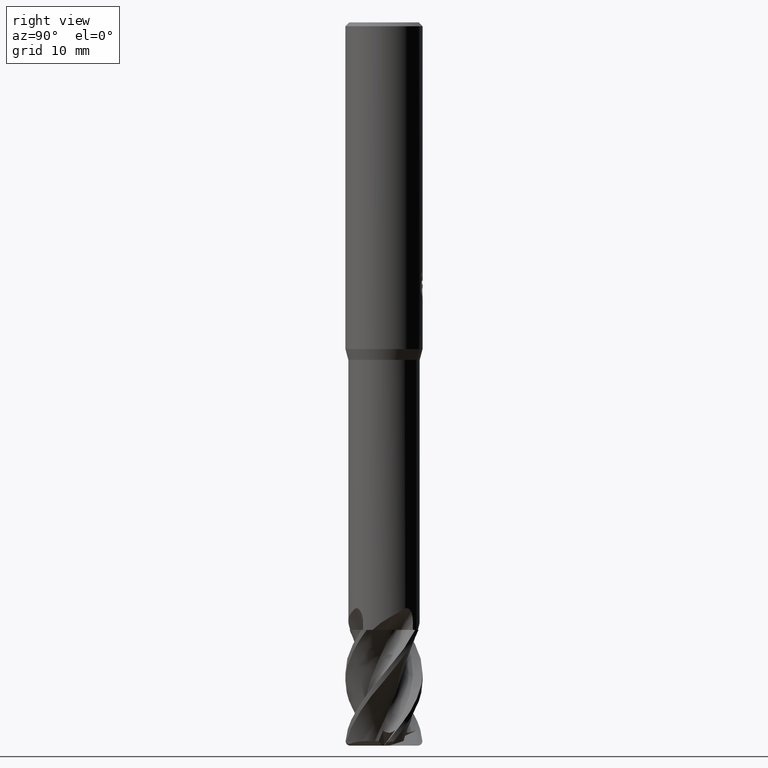
[diagram: clean part render]
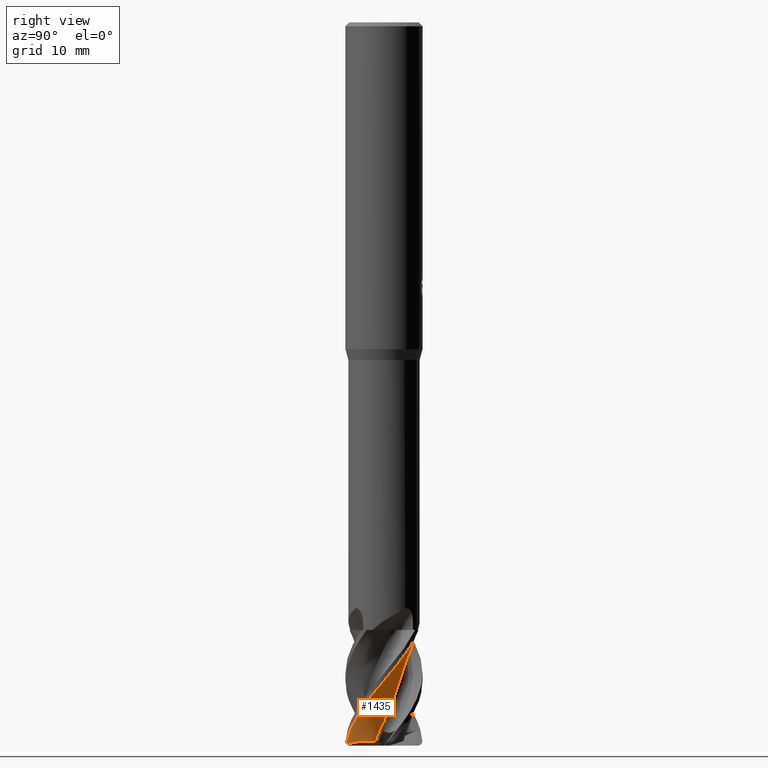
[diagram: same view with one face highlighted and labeled with its STEP entity id]
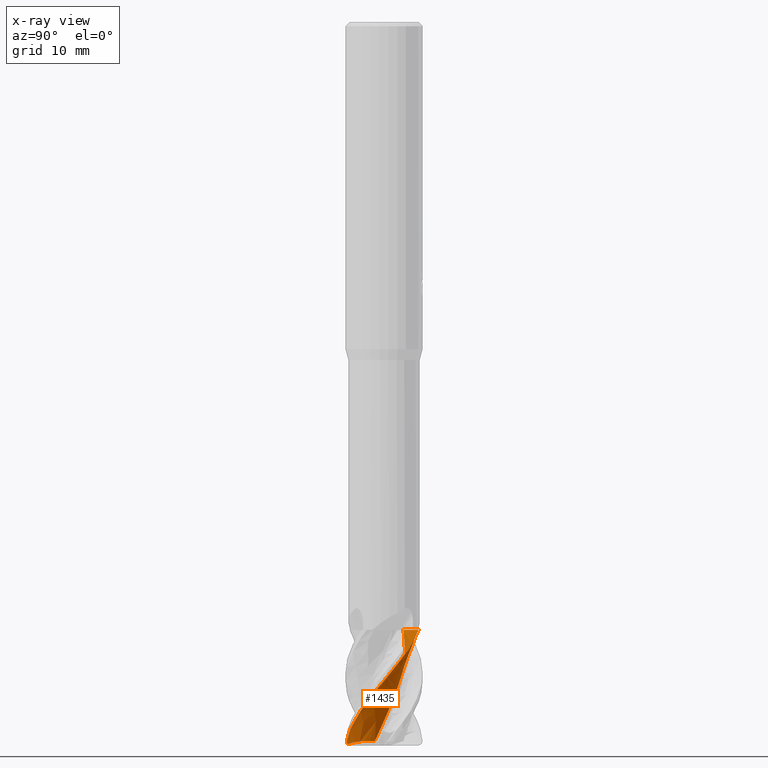
[diagram: x-ray of the same camera — body ghosted, the highlighted face saturated]
A machine part, right view. The second image highlights one B-rep face of the part: STEP entity #1435.
The next image is the same camera in x-ray: the body ghosted, the highlighted face saturated — about 0% of this face is hidden behind the body in this view.
In plain terms, the highlighted face is a freeform B-spline surface patch.
Its self-contained STEP definition (entity closure, byte-faithful):
#693=EDGE_CURVE('',#1035,#913,#1696,.T.);
#761=EDGE_CURVE('',#1019,#1021,#1770,.T.);
#769=EDGE_CURVE('',#1021,#1265,#1778,.T.);
#833=EDGE_CURVE('',#1265,#1033,#1844,.T.);
#913=VERTEX_POINT('',#1933);
#1019=VERTEX_POINT('',#2050);
#1021=VERTEX_POINT('',#2052);
#1033=VERTEX_POINT('',#2065);
#1035=VERTEX_POINT('',#2067);
#1063=EDGE_CURVE('',#1033,#913,#2098,.T.);
#1147=EDGE_CURVE('',#1035,#1019,#2189,.T.);
#1265=VERTEX_POINT('',#2317);
#1435=ADVANCED_FACE('',(#2507),#2508,.T.);
#1696=B_SPLINE_CURVE_WITH_KNOTS('',3,(#4288,#4289,#4290,#4291,#4292,#4293,#4294,#4295,#4296,#4297,#4298,#4299,#4300,#4301,#4302,#4303,#4304,#4305,#4306,#4307,#4308,#4309,#4310,#4311,#4312,#4313,#4314,#4315,#4316,#4317,#4318,#4319,#4320,#4321,#4322,#4323,#4324,#4325,#4326,#4327),.UNSPECIFIED.,.F.,.F.,(4,1,2,2,1,2,1,1,2,1,1,2,1,1,1,2,1,1,2,1,1,2,1,1,1,2,1,1,4),(0.0,0.439032880743634,0.878065761487268,1.75613152297454,2.63419728446181,3.51226304594907,4.39032880743634,5.70742744966724,7.02452609189815,8.34162473412905,9.65872337635995,10.5367891378472,11.4148548993345,12.2929206608218,13.170986422309,14.0490521837963,14.9271179452836,16.2442165875145,17.5613152297454,18.8784138719763,20.1955125142072,21.0735782756944,21.9516440371817,22.829709798669,23.7077755601562,24.5858413216435,25.4639070831308,26.7810057253617,28.0981043675926),.UNSPECIFIED.);
#1770=B_SPLINE_CURVE_WITH_KNOTS('',3,(#4737,#4738,#4739,#4740,#4741,#4742,#4743,#4744,#4745,#4746,#4747,#4748,#4749,#4750,#4751,#4752,#4753,#4754,#4755,#4756),.UNSPECIFIED.,.F.,.F.,(4,2,2,2,2,2,2,2,2,4),(0.0,0.552379909871849,1.06509052212092,1.39206714547594,1.59261688969133,1.72125507088427,1.86937894001586,1.99092780604971,2.05068872444246,2.10153383074118),.UNSPECIFIED.);
#1778=B_SPLINE_CURVE_WITH_KNOTS('',3,(#4779,#4780,#4781,#4782,#4783,#4784,#4785,#4786,#4787,#4788,#4789,#4790,#4791,#4792,#4793,#4794,#4795,#4796,#4797,#4798,#4799,#4800,#4801,#4802),.UNSPECIFIED.,.F.,.F.,(4,2,2,2,2,2,2,2,2,2,2,4),(0.0,1.93728681946989,2.38966177567358,3.2172363994353,3.84118026542504,4.151431104592,4.42447861877657,4.59394454958343,4.72281081769223,4.83222102079734,4.9199867294356,5.00744576006173),.UNSPECIFIED.);
#1844=B_SPLINE_CURVE_WITH_KNOTS('',3,(#5046,#5047,#5048,#5049,#5050,#5051,#5052,#5053),.UNSPECIFIED.,.F.,.F.,(4,2,2,4),(0.0,1.24316628872534,2.39651484077598,3.54982946853822),.UNSPECIFIED.);
#1933=CARTESIAN_POINT('',(-0.841296239243843,2.02177351185507,-63.0));
#2050=CARTESIAN_POINT('',(0.996993932438072,-3.72293093051326,-74.8529896927436));
#2052=CARTESIAN_POINT('',(1.0573862072393,-3.85771103230142,-74.5));
#2065=CARTESIAN_POINT('',(-0.362782698585987,2.63743713481837,-63.0));
#2067=CARTESIAN_POINT('',(1.97351294023017,-0.952778940918722,-74.5356994333427));
#2098=B_SPLINE_CURVE_WITH_KNOTS('',3,(#6309,#6310,#6311,#6312,#6313,#6314,#6315,#6316),.UNSPECIFIED.,.F.,.F.,(4,2,2,4),(0.0,1.24316628872534,2.39651484077598,3.54982946853822),.UNSPECIFIED.);
#2189=B_SPLINE_CURVE_WITH_KNOTS('',3,(#6806,#6807,#6808,#6809,#6810,#6811,#6812,#6813),.UNSPECIFIED.,.F.,.F.,(4,2,2,4),(0.0,1.08865642506067,2.10408348581509,3.23014612928414),.UNSPECIFIED.);
#2317=CARTESIAN_POINT('',(1.79929514636751,3.57235734302409,-63.0));
#2507=FACE_OUTER_BOUND('',#9105,.T.);
#2508=B_SPLINE_SURFACE_WITH_KNOTS('',3,3,((#9106,#9107,#9108,#9109,#9110,#9111,#9112,#9113,#9114,#9115,#9116,#9117,#9118,#9119,#9120,#9121,#9122,#9123,#9124,#9125,#9126,#9127,#9128,#9129,#9130,#9131,#9132,#9133,#9134,#9135,#9136,#9137,#9138,#9139,#9140,#9141,#9142,#9143,#9144,#9145),(#9146,#9147,#9148,#9149,#9150,#9151,#9152,#9153,#9154,#9155,#9156,#9157,#9158,#9159,#9160,#9161,#9162,#9163,#9164,#9165,#9166,#9167,#9168,#9169,#9170,#9171,#9172,#9173,#9174,#9175,#9176,#9177,#9178,#9179,#9180,#9181,#9182,#9183,#9184,#9185),(#9186,#9187,#9188,#9189,#9190,#9191,#9192,#9193,#9194,#9195,#9196,#9197,#9198,#9199,#9200,#9201,#9202,#9203,#9204,#9205,#9206,#9207,#9208,#9209,#9210,#9211,#9212,#9213,#9214,#9215,#9216,#9217,#9218,#9219,#9220,#9221,#9222,#9223,#9224,#9225),(#9226,#9227,#9228,#9229,#9230,#9231,#9232,#9233,#9234,#9235,#9236,#9237,#9238,#9239,#9240,#9241,#9242,#9243,#9244,#9245,#9246,#9247,#9248,#9249,#9250,#9251,#9252,#9253,#9254,#9255,#9256,#9257,#9258,#9259,#9260,#9261,#9262,#9263,#9264,#9265),(#9266,#9267,#9268,#9269,#9270,#9271,#9272,#9273,#9274,#9275,#9276,#9277,#9278,#9279,#9280,#9281,#9282,#9283,#9284,#9285,#9286,#9287,#9288,#9289,#9290,#9291,#9292,#9293,#9294,#9295,#9296,#9297,#9298,#9299,#9300,#9301,#9302,#9303,#9304,#9305),(#9306,#9307,#9308,#9309,#9310,#9311,#9312,#9313,#9314,#9315,#9316,#9317,#9318,#9319,#9320,#9321,#9322,#9323,#9324,#9325,#9326,#9327,#9328,#9329,#9330,#9331,#9332,#9333,#9334,#9335,#9336,#9337,#9338,#9339,#9340,#9341,#9342,#9343,#9344,#9345)),.UNSPECIFIED.,.F.,.F.,.F.,(4,1,1,4),(4,1,2,2,1,2,1,1,2,1,1,2,1,1,1,2,1,1,2,1,1,2,1,1,1,2,1,1,4),(-1.11221997675071,-0.695137485469193,-0.278054994187677,0.0),(0.0,0.439032880743634,0.878065761487268,1.75613152297454,2.63419728446181,3.51226304594907,4.39032880743634,5.70742744966724,7.02452609189815,8.34162473412905,9.65872337635995,10.5367891378472,11.4148548993345,12.2929206608218,13.170986422309,14.0490521837963,14.9271179452836,16.2442165875145,17.5613152297454,18.8784138719763,20.1955125142072,21.0735782756944,21.9516440371817,22.829709798669,23.7077755601562,24.5858413216435,25.4639070831308,26.7810057253617,28.0981043675926),.UNSPECIFIED.);
#4288=CARTESIAN_POINT('',(-1.23613335073989,-1.83170567526701,-83.0));
#4289=CARTESIAN_POINT('',(-1.2377895840979,-1.81807190279314,-82.8541741025457));
#4290=CARTESIAN_POINT('',(-1.20672728851038,-1.82271625522481,-82.5628177782087));
#4291=CARTESIAN_POINT('',(-1.10193977056054,-1.88691339274446,-82.2716006431028));
#4292=CARTESIAN_POINT('',(-0.880009326314224,-2.01309225989056,-81.8337736308468));
#4293=CARTESIAN_POINT('',(-0.741571961981888,-2.06726661479441,-81.5416445104132));
#4294=CARTESIAN_POINT('',(-0.492002390065836,-2.13931761054456,-80.9583762189255));
#4295=CARTESIAN_POINT('',(-0.23615170090708,-2.18934948186274,-80.3752134236371));
#4296=CARTESIAN_POINT('',(0.0351354785264086,-2.19461392158264,-79.7921044073619));
#4297=CARTESIAN_POINT('',(0.314320511967686,-2.17398519802234,-79.2087722863488));
#4298=CARTESIAN_POINT('',(0.648308072652244,-2.11436880880064,-78.4793497458805));
#4299=CARTESIAN_POINT('',(1.12471810574497,-1.90871536392046,-77.312590068964));
#4300=CARTESIAN_POINT('',(1.4428643393216,-1.65997622250884,-76.438061733193));
#4301=CARTESIAN_POINT('',(1.73675141912833,-1.35441896186937,-75.5630251478354));
#4302=CARTESIAN_POINT('',(1.96823735719612,-1.02281854264093,-74.6875307598658));
#4303=CARTESIAN_POINT('',(2.14303395844564,-0.532774139746374,-73.5210143615493));
#4304=CARTESIAN_POINT('',(2.18571141378913,-0.194198857834362,-72.7921362978877));
#4305=CARTESIAN_POINT('',(2.19452375398434,0.0878361312475619,-72.2088115650719));
#4306=CARTESIAN_POINT('',(2.17480937276935,0.360431320792964,-71.6252634432));
#4307=CARTESIAN_POINT('',(2.07439449275861,0.740221703624163,-70.7500705620949));
#4308=CARTESIAN_POINT('',(1.90890820649805,1.09638797289779,-69.8752721481262));
#4309=CARTESIAN_POINT('',(1.75262698830087,1.32038318914499,-69.2921597192466));
#4310=CARTESIAN_POINT('',(1.57017724675793,1.53567838762889,-68.7088239899177));
#4311=CARTESIAN_POINT('',(1.32349098648404,1.77199226154813,-67.9793696160966));
#4312=CARTESIAN_POINT('',(0.8747930619271,2.03563948115146,-66.8125270380495));
#4313=CARTESIAN_POINT('',(0.4865429779521,2.14498848700632,-65.9379878174441));
#4314=CARTESIAN_POINT('',(0.0671297333498573,2.20138109026099,-65.0629938942943));
#4315=CARTESIAN_POINT('',(-0.336864386049752,2.19235989369973,-64.1875398525262));
#4316=CARTESIAN_POINT('',(-0.835884465748461,2.04398657831165,-63.0210307890431));
#4317=CARTESIAN_POINT('',(-1.13448045731937,1.87834134008742,-62.2921241783026));
#4318=CARTESIAN_POINT('',(-1.36731068210093,1.71881029686207,-61.7087662846029));
#4319=CARTESIAN_POINT('',(-1.57550059972729,1.54191616645982,-61.1251983335048));
#4320=CARTESIAN_POINT('',(-1.82241969877268,1.23676095566173,-60.2500244897498));
#4321=CARTESIAN_POINT('',(-2.0121081769327,0.892888657253481,-59.3752934999789));
#4322=CARTESIAN_POINT('',(-2.10078703375201,0.634071119678672,-58.7922523483994));
#4323=CARTESIAN_POINT('',(-2.16699866420342,0.358890110032327,-58.2089944758945));
#4324=CARTESIAN_POINT('',(-2.21207933699895,0.0192641924077824,-57.4795669727126));
#4325=CARTESIAN_POINT('',(-2.15908810072524,-0.49745799484223,-56.3125405604053));
#4326=CARTESIAN_POINT('',(-2.0191689397977,-0.870104756804534,-55.4377984901958));
#4327=CARTESIAN_POINT('',(-1.92006749227673,-1.05258971714799,-55.0002396351413));
#4737=CARTESIAN_POINT('',(1.66044897743041,-2.72052942918702,-74.8900880121276));
#4738=CARTESIAN_POINT('',(1.57054552683683,-2.86814644065985,-74.953564037599));
#4739=CARTESIAN_POINT('',(1.46892084316048,-3.0274934666502,-74.9905708615423));
#4740=CARTESIAN_POINT('',(1.26869171430444,-3.32115088396265,-75.0057265788444));
#4741=CARTESIAN_POINT('',(1.17732461022279,-3.4473923216172,-74.9873274808994));
#4742=CARTESIAN_POINT('',(1.06032429880383,-3.61748752784959,-74.9249890739353));
#4743=CARTESIAN_POINT('',(1.02286381022614,-3.67486076051541,-74.8926768275498));
#4744=CARTESIAN_POINT('',(0.981947249004904,-3.75088735414253,-74.8299118506339));
#4745=CARTESIAN_POINT('',(0.969675219815029,-3.778227916791,-74.8016502797815));
#4746=CARTESIAN_POINT('',(0.960736640291397,-3.81600710366802,-74.7476475404699));
#4747=CARTESIAN_POINT('',(0.96015065420727,-3.82863383588939,-74.7251536440298));
#4748=CARTESIAN_POINT('',(0.966295672276164,-3.85030250031922,-74.6739895773763));
#4749=CARTESIAN_POINT('',(0.973973749187197,-3.85788434215215,-74.6463963505883));
#4750=CARTESIAN_POINT('',(0.994671707533354,-3.86521472452642,-74.5965306261344));
#4751=CARTESIAN_POINT('',(1.00624394911154,-3.86603736809081,-74.5747605334196));
#4752=CARTESIAN_POINT('',(1.02563427440177,-3.86440879575991,-74.5437091107161));
#4753=CARTESIAN_POINT('',(1.0323706959229,-3.86340896337301,-74.5337037706904));
#4754=CARTESIAN_POINT('',(1.0453043932249,-3.86082464069198,-74.5156535666862));
#4755=CARTESIAN_POINT('',(1.05144269730596,-3.85934752849926,-74.5075241950876));
#4756=CARTESIAN_POINT('',(1.05772203074701,-3.85761878070987,-74.4995745022415));
#4779=CARTESIAN_POINT('',(1.05738620723929,-3.85771103230143,-74.5));
#4780=CARTESIAN_POINT('',(1.45162561306638,-3.74964676967866,-74.0000936893084));
#4781=CARTESIAN_POINT('',(1.83237321266958,-3.58027474018773,-73.4911276210456));
#4782=CARTESIAN_POINT('',(2.26595803287357,-3.29771435929027,-72.8831146255278));
#4783=CARTESIAN_POINT('',(2.34661969249642,-3.24085378287713,-72.7685640361869));
#4784=CARTESIAN_POINT('',(2.57021714576231,-3.07032548673466,-72.4463390566786));
#4785=CARTESIAN_POINT('',(2.8900833146088,-2.81634802634292,-71.9921522808785));
#4786=CARTESIAN_POINT('',(3.44876083432217,-2.06580604274699,-70.8575235774545));
#4787=CARTESIAN_POINT('',(3.63968005746968,-1.70775137331179,-70.3586530440893));
#4788=CARTESIAN_POINT('',(3.84061516966927,-1.13572831360334,-69.6311853883419));
#4789=CARTESIAN_POINT('',(3.89379523851241,-0.938510827680088,-69.3911246173042));
#4790=CARTESIAN_POINT('',(3.96527726549949,-0.556183527153928,-68.9455356000377));
#4791=CARTESIAN_POINT('',(4.03241734332764,-0.153476436416639,-68.491556096486));
#4792=CARTESIAN_POINT('',(3.95086773147155,0.706887737461276,-67.4432634608524));
#4793=CARTESIAN_POINT('',(3.87888201893256,1.03112782069707,-67.0349877150818));
#4794=CARTESIAN_POINT('',(3.68334354185828,1.57978239105636,-66.3282696240265));
#4795=CARTESIAN_POINT('',(3.57546457647298,1.81184541925001,-66.0242045653966));
#4796=CARTESIAN_POINT('',(3.33135780768348,2.22484923324863,-65.4713666629679));
#4797=CARTESIAN_POINT('',(3.18213909994503,2.44362188765242,-65.1758776828237));
#4798=CARTESIAN_POINT('',(2.80477204079961,2.86279314753247,-64.5060816309717));
#4799=CARTESIAN_POINT('',(2.62121939526714,3.03136925610204,-64.2037219185977));
#4800=CARTESIAN_POINT('',(2.23004150484802,3.32963063487873,-63.6014822768226));
#4801=CARTESIAN_POINT('',(2.02059242018486,3.46089908850908,-63.2989133598405));
#4802=CARTESIAN_POINT('',(1.79929514636759,3.57235734302408,-63.0));
#5046=CARTESIAN_POINT('',(2.14402707640686,3.56366989385119,-63.0));
#5047=CARTESIAN_POINT('',(1.73094390282993,3.59653839750445,-63.0));
#5048=CARTESIAN_POINT('',(1.31539089322412,3.5484098169718,-63.0));
#5049=CARTESIAN_POINT('',(0.55463591995554,3.30470197086095,-63.0));
#5050=CARTESIAN_POINT('',(0.212781753843214,3.12203290532083,-63.0));
#5051=CARTESIAN_POINT('',(-0.389183256803378,2.64367594059889,-63.0));
#5052=CARTESIAN_POINT('',(-0.644342803606158,2.35192789122174,-63.0));
#5053=CARTESIAN_POINT('',(-0.841296239243843,2.02177351185507,-63.0));
#6309=CARTESIAN_POINT('',(2.14402707640686,3.56366989385119,-63.0));
#6310=CARTESIAN_POINT('',(1.73094390282993,3.59653839750445,-63.0));
#6311=CARTESIAN_POINT('',(1.31539089322412,3.5484098169718,-63.0));
#6312=CARTESIAN_POINT('',(0.55463591995554,3.30470197086095,-63.0));
#6313=CARTESIAN_POINT('',(0.212781753843214,3.12203290532083,-63.0));
#6314=CARTESIAN_POINT('',(-0.389183256803378,2.64367594059889,-63.0));
#6315=CARTESIAN_POINT('',(-0.644342803606158,2.35192789122174,-63.0));
#6316=CARTESIAN_POINT('',(-0.841296239243843,2.02177351185507,-63.0));
#6806=CARTESIAN_POINT('',(1.97351294021357,-0.952778940938979,-74.5356994333715));
#6807=CARTESIAN_POINT('',(2.04757799987169,-1.30720961290033,-74.5116342366859));
#6808=CARTESIAN_POINT('',(2.0572321850472,-1.67043789055809,-74.5084974018381));
#6809=CARTESIAN_POINT('',(1.93925552037631,-2.35993847755417,-74.5468303438856));
#6810=CARTESIAN_POINT('',(1.82267529283481,-2.67572733100366,-74.5847095559191));
#6811=CARTESIAN_POINT('',(1.46485967209959,-3.28154787893545,-74.7009708987158));
#6812=CARTESIAN_POINT('',(1.21738515390451,-3.55520844993195,-74.7813802440124));
#6813=CARTESIAN_POINT('',(0.928998976948292,-3.7767541407904,-74.8750825930267));
#9105=EDGE_LOOP('',(#11268,#11269,#11270,#11271,#11272,#11273));
#9106=CARTESIAN_POINT('',(-4.15651252143689,-0.170304604727884,-83.0));
#9107=CARTESIAN_POINT('',(-4.15676892670255,-0.154210242727548,-82.8541700844363));
#9108=CARTESIAN_POINT('',(-4.15562483607312,-0.209523727899494,-82.5625220401028));
#9109=CARTESIAN_POINT('',(-4.13836939985323,-0.442853523972597,-82.2708781220468));
#9110=CARTESIAN_POINT('',(-4.0678284817884,-0.921306972990124,-81.8333563516772));
#9111=CARTESIAN_POINT('',(-3.99169227389445,-1.19232112564926,-81.5416638018503));
#9112=CARTESIAN_POINT('',(-3.82291319071121,-1.65577071237822,-80.9583350399687));
#9113=CARTESIAN_POINT('',(-3.61329091740189,-2.10427211047267,-80.3750113981913));
#9114=CARTESIAN_POINT('',(-3.31534053892048,-2.5246076582793,-79.7916900625163));
#9115=CARTESIAN_POINT('',(-2.9673084033052,-2.925959826272,-79.2083559884261));
#9116=CARTESIAN_POINT('',(-2.49992472884865,-3.36860920888073,-78.479173717222));
#9117=CARTESIAN_POINT('',(-1.65204719038241,-3.87036589757219,-77.312501023173));
#9118=CARTESIAN_POINT('',(-0.913225561306203,-4.07707142689905,-76.4375280236327));
#9119=CARTESIAN_POINT('',(-0.114967529240871,-4.1765809275134,-75.5625254817898));
#9120=CARTESIAN_POINT('',(0.651943091671326,-4.15752407826287,-74.6874963190081));
#9121=CARTESIAN_POINT('',(1.59972482719409,-3.87809779097972,-73.5208374924055));
#9122=CARTESIAN_POINT('',(2.16478665765027,-3.56091954372779,-72.7916869961086));
#9123=CARTESIAN_POINT('',(2.60351845151079,-3.25401031519312,-72.2083537417935));
#9124=CARTESIAN_POINT('',(2.99708798486999,-2.91635436596338,-71.6250075661316));
#9125=CARTESIAN_POINT('',(3.46680282946825,-2.33708651069799,-70.7499958159636));
#9126=CARTESIAN_POINT('',(3.82751733132171,-1.68433362491881,-69.8750069158249));
#9127=CARTESIAN_POINT('',(3.99294546033981,-1.19282746707869,-69.2916859845093));
#9128=CARTESIAN_POINT('',(4.11299375634761,-0.670972280874595,-68.7083521120204));
#9129=CARTESIAN_POINT('',(4.19511630124148,-0.0280670918421337,-67.9791682715022));
#9130=CARTESIAN_POINT('',(4.09837007261366,0.955220905290089,-66.8124905911891));
#9131=CARTESIAN_POINT('',(3.82868019011448,1.67245182726691,-65.9375167094195));
#9132=CARTESIAN_POINT('',(3.43808057423096,2.37405117325486,-65.0625165542873));
#9133=CARTESIAN_POINT('',(2.97019996468435,2.98127995998127,-64.1874898122224));
#9134=CARTESIAN_POINT('',(2.18449731870788,3.58149869460806,-63.0208315615416));
#9135=CARTESIAN_POINT('',(1.5944227637812,3.85023254156484,-62.2916793134769));
#9136=CARTESIAN_POINT('',(1.08749307556035,4.02297490391,-61.7083439526461));
#9137=CARTESIAN_POINT('',(0.58276018944727,4.14099537609584,-61.1249963351636));
#9138=CARTESIAN_POINT('',(-0.161543976817411,4.17784942245168,-60.2499852845867));
#9139=CARTESIAN_POINT('',(-0.901319668873798,4.08346414081249,-59.3750002829367));
#9140=CARTESIAN_POINT('',(-1.3964840386558,3.92640343042626,-58.7916839793687));
#9141=CARTESIAN_POINT('',(-1.88985839272763,3.71428220152244,-58.2083554875879));
#9142=CARTESIAN_POINT('',(-2.45856583546626,3.39955143193267,-57.4791747580688));
#9143=CARTESIAN_POINT('',(-3.19246370180782,2.74097245550957,-56.3124914932851));
#9144=CARTESIAN_POINT('',(-3.60643704505467,2.10819027021498,-55.4375129402571));
#9145=CARTESIAN_POINT('',(-3.77225099562874,1.75067342368867,-55.0000138769393));
#9146=CARTESIAN_POINT('',(-3.94536664948759,-0.559112466708611,-83.0));
#9147=CARTESIAN_POINT('',(-3.94595064628673,-0.543196007571147,-82.8541710130093));
#9148=CARTESIAN_POINT('',(-3.93793846804385,-0.594922015624464,-82.5625903842748));
#9149=CARTESIAN_POINT('',(-3.89913701039558,-0.815419520035849,-82.2710450944047));
#9150=CARTESIAN_POINT('',(-3.78717812074856,-1.26499600109144,-81.833452783646));
#9151=CARTESIAN_POINT('',(-3.68900176999011,-1.51608837223096,-81.5416593429516));
#9152=CARTESIAN_POINT('',(-3.48398135626333,-1.94137798612009,-80.9583445570053));
#9153=CARTESIAN_POINT('',(-3.24149183588851,-2.34852622060606,-80.3750580853988));
#9154=CARTESIAN_POINT('',(-2.91767275475765,-2.72058525889595,-79.7917858161176));
#9155=CARTESIAN_POINT('',(-2.54800963588012,-3.06995597148856,-79.2084521937968));
#9156=CARTESIAN_POINT('',(-2.06063393966165,-3.4471578419526,-78.479214398369));
#9157=CARTESIAN_POINT('',(-1.20513202300133,-3.84397495070122,-77.3125216003117));
#9158=CARTESIAN_POINT('',(-0.481703295676922,-3.97050137383369,-76.4376513643988));
#9159=CARTESIAN_POINT('',(0.288299334157581,-3.98964870776282,-75.5626409509275));
#9160=CARTESIAN_POINT('',(1.01705027289851,-3.8984193598936,-74.687504275473));
#9161=CARTESIAN_POINT('',(1.89301795476161,-3.54170793146605,-73.5208783683327));
#9162=CARTESIAN_POINT('',(2.40114151078816,-3.18582659052607,-72.7917908299561));
#9163=CARTESIAN_POINT('',(2.79006044196323,-2.85181648293337,-72.208459541741));
#9164=CARTESIAN_POINT('',(3.13288441331078,-2.49271058148612,-71.6250666987934));
#9165=CARTESIAN_POINT('',(3.52496837681688,-1.89612440964803,-70.7500130899503));
#9166=CARTESIAN_POINT('',(3.80621530502726,-1.23996770381086,-69.8750682131881));
#9167=CARTESIAN_POINT('',(3.91706798988143,-0.756019614194456,-69.2917954582065));
#9168=CARTESIAN_POINT('',(3.98197529038824,-0.247425233232464,-68.7084611664757));
#9169=CARTESIAN_POINT('',(3.99906113853633,0.372860073107469,-67.9792148020716));
#9170=CARTESIAN_POINT('',(3.81293032563823,1.30012410366406,-66.8124990241089));
#9171=CARTESIAN_POINT('',(3.48772746169429,1.95760799199352,-65.9376255638311));
#9172=CARTESIAN_POINT('',(3.04905807906089,2.58904764125313,-65.0626268832739));
#9173=CARTESIAN_POINT('',(2.54548838419134,3.12291195526262,-64.187501356164));
#9174=CARTESIAN_POINT('',(1.73981619980283,3.61947840358145,-63.0208775989161));
#9175=CARTESIAN_POINT('',(1.1521488827454,3.81936943712225,-62.2917821333736));
#9176=CARTESIAN_POINT('',(0.652779853159443,3.93589687319613,-61.7084415392471));
#9177=CARTESIAN_POINT('',(0.160714532729031,4.00032077093464,-61.1250430289101));
#9178=CARTESIAN_POINT('',(-0.551732546121331,3.96435083198269,-60.249994352584));
#9179=CARTESIAN_POINT('',(-1.2473256823751,3.80382637881013,-59.3750680424608));
#9180=CARTESIAN_POINT('',(-1.70410002122283,3.60713072729915,-58.7918153196501));
#9181=CARTESIAN_POINT('',(-2.15408196965846,3.35826535825855,-58.2085031638474));
#9182=CARTESIAN_POINT('',(-2.66595534012522,3.0043538713905,-57.4792653854182));
#9183=CARTESIAN_POINT('',(-3.30198420834906,2.30694550525982,-56.3125028313736));
#9184=CARTESIAN_POINT('',(-3.63592647078397,1.6647578553258,-55.4375789255772));
#9185=CARTESIAN_POINT('',(-3.75994509429423,1.30840348931571,-55.000066048961));
#9186=CARTESIAN_POINT('',(-3.35869664387462,-1.24718889255746,-83.0));
#9187=CARTESIAN_POINT('',(-3.35986038896509,-1.23176673667378,-82.8541726616025));
#9188=CARTESIAN_POINT('',(-3.3396334869126,-1.27341405814628,-82.5627117239106));
#9189=CARTESIAN_POINT('',(-3.26318055409895,-1.45913847485402,-82.2713415406297));
#9190=CARTESIAN_POINT('',(-3.08062505666405,-1.83345398424911,-81.8336239908523));
#9191=CARTESIAN_POINT('',(-2.9468085987261,-2.03538906317148,-81.5416514291636));
#9192=CARTESIAN_POINT('',(-2.68546941962495,-2.36904678971328,-80.9583614511165));
#9193=CARTESIAN_POINT('',(-2.39475837256661,-2.67960594988501,-80.3751409758429));
#9194=CARTESIAN_POINT('',(-2.03964013213078,-2.94419381409185,-79.7919558196445));
#9195=CARTESIAN_POINT('',(-1.6487184648862,-3.18047833323297,-79.2086229981977));
#9196=CARTESIAN_POINT('',(-1.14905831082551,-3.41836255131359,-78.4792866202565));
#9197=CARTESIAN_POINT('',(-0.322708400297972,-3.60213158105024,-77.3125581362009));
#9198=CARTESIAN_POINT('',(0.336021599740302,-3.57485536324545,-76.4378703395951));
#9199=CARTESIAN_POINT('',(1.01552998515959,-3.44527576482719,-75.5628459637698));
#9200=CARTESIAN_POINT('',(1.63744826180198,-3.2258845816868,-74.6875184102004));
#9201=CARTESIAN_POINT('',(2.33712974638419,-2.74502691651022,-73.5209509328191));
#9202=CARTESIAN_POINT('',(2.71503345097304,-2.33584908023133,-72.79197517376));
#9203=CARTESIAN_POINT('',(2.99288806136278,-1.96872613206575,-72.208647386101));
#9204=CARTESIAN_POINT('',(3.22517352565636,-1.58820076219627,-71.6251716851896));
#9205=CARTESIAN_POINT('',(3.45471084294941,-0.989830506028528,-70.7500437566908));
#9206=CARTESIAN_POINT('',(3.575625519679,-0.360488225608428,-69.8751770307359));
#9207=CARTESIAN_POINT('',(3.58055440098389,0.0852586609597134,-69.2919898351638));
#9208=CARTESIAN_POINT('',(3.54081972357852,0.544010179587466,-68.7086547689181));
#9209=CARTESIAN_POINT('',(3.43743709335526,1.09155295577728,-67.9792974077458));
#9210=CARTESIAN_POINT('',(3.09628740941769,1.86898352858122,-66.8125139610039));
#9211=CARTESIAN_POINT('',(2.68536564579016,2.38351984571737,-65.9378188855511));
#9212=CARTESIAN_POINT('',(2.18026509425247,2.85434120836644,-65.0628227043101));
#9213=CARTESIAN_POINT('',(1.63637469981831,3.2264172991807,-64.1875219176743));
#9214=CARTESIAN_POINT('',(0.834626259837972,3.5072867151386,-63.0209593471654));
#9215=CARTESIAN_POINT('',(0.280897341941008,3.57054773830845,-62.291964636854));
#9216=CARTESIAN_POINT('',(-0.179571687812066,3.57787438580141,-61.708614841585));
#9217=CARTESIAN_POINT('',(-0.623633695223791,3.54049334815173,-61.1251258876922));
#9218=CARTESIAN_POINT('',(-1.24157427860698,3.3723925010964,-60.2500104238524));
#9219=CARTESIAN_POINT('',(-1.82084477970175,3.098317715995,-59.3751883550645));
#9220=CARTESIAN_POINT('',(-2.18409151066266,2.83861522340857,-58.7920485214406));
#9221=CARTESIAN_POINT('',(-2.53176680439332,2.53463937009648,-58.2087653337947));
#9222=CARTESIAN_POINT('',(-2.91342661913508,2.12643235706134,-57.4794263171853));
#9223=CARTESIAN_POINT('',(-3.33734287078266,1.39279149508771,-56.3125229719776));
#9224=CARTESIAN_POINT('',(-3.50728710489406,0.765656623489045,-55.4376960903196));
#9225=CARTESIAN_POINT('',(-3.54822944908745,0.429308875359152,-55.0001586762479));
#9226=CARTESIAN_POINT('',(-2.27180685316627,-1.76895577092612,-83.0));
#9227=CARTESIAN_POINT('',(-2.27341021514057,-1.75444938299658,-82.8541739277214));
#9228=CARTESIAN_POINT('',(-2.24373945966857,-1.77721166643778,-82.5628049122518));
#9229=CARTESIAN_POINT('',(-2.14017833064829,-1.90020629281433,-82.2715692101832));
#9230=CARTESIAN_POINT('',(-1.91223105607222,-2.1446388124136,-81.8337554772485));
#9231=CARTESIAN_POINT('',(-1.76152989566074,-2.26739699917858,-81.5416453496056));
#9232=CARTESIAN_POINT('',(-1.48104810027898,-2.4589304082388,-80.9583744275262));
#9233=CARTESIAN_POINT('',(-1.18374301238934,-2.62569750425189,-80.3752046346941));
#9234=CARTESIAN_POINT('',(-0.848537931365264,-2.74237143391804,-79.7920863812414));
#9235=CARTESIAN_POINT('',(-0.492802295779826,-2.82932234763224,-79.2087541757344));
#9236=CARTESIAN_POINT('',(-0.0534398910899902,-2.89074643905799,-78.479342086906));
#9237=CARTESIAN_POINT('',(0.622266955479762,-2.83056846785681,-77.3125861948947));
#9238=CARTESIAN_POINT('',(1.11903355011284,-2.65076874377564,-76.4380385146576));
#9239=CARTESIAN_POINT('',(1.60787710520906,-2.38878981773251,-75.5630034098365));
#9240=CARTESIAN_POINT('',(2.03032575256397,-2.07089491231098,-74.6875292577415));
#9241=CARTESIAN_POINT('',(2.44804597642345,-1.53395343771168,-73.521006669318));
#9242=CARTESIAN_POINT('',(2.63842102322545,-1.13016573620448,-72.7921167491209));
#9243=CARTESIAN_POINT('',(2.7630018473811,-0.782686483989743,-72.2087916497766));
#9244=CARTESIAN_POINT('',(2.84897232076571,-0.435774529045564,-71.6252523121419));
#9245=CARTESIAN_POINT('',(2.87940749543165,0.0769480358895598,-70.7500673091956));
#9246=CARTESIAN_POINT('',(2.81937079861786,0.586978539036442,-69.8752606066695));
#9247=CARTESIAN_POINT('',(2.7158222937499,0.928929980478293,-69.2921391113216));
#9248=CARTESIAN_POINT('',(2.57546264295721,1.27038785476927,-68.7088034593963));
#9249=CARTESIAN_POINT('',(2.36453559901595,1.66417223693525,-67.9793608555696));
#9250=CARTESIAN_POINT('',(1.91537737639415,2.17520624296214,-66.8125254544979));
#9251=CARTESIAN_POINT('',(1.47720073438293,2.4691817714004,-65.9379673196882));
#9252=CARTESIAN_POINT('',(0.977903622586959,2.70832336138097,-65.0629731302514));
#9253=CARTESIAN_POINT('',(0.472276518864418,2.8614008308788,-64.187537673989));
#9254=CARTESIAN_POINT('',(-0.208149960089701,2.88146367397261,-63.0210221210964));
#9255=CARTESIAN_POINT('',(-0.646689358206295,2.79651446997004,-62.292104827962));
#9256=CARTESIAN_POINT('',(-1.0007405960166,2.69174678312886,-61.7087479079436));
#9257=CARTESIAN_POINT('',(-1.33128411710937,2.55620512194798,-61.1251895445376));
#9258=CARTESIAN_POINT('',(-1.76263577011626,2.27810268135198,-60.2500227824086));
#9259=CARTESIAN_POINT('',(-2.13876319952673,1.92846234275129,-59.375280750363));
#9260=CARTESIAN_POINT('',(-2.35396130838911,1.64248894180434,-58.7922276139991));
#9261=CARTESIAN_POINT('',(-2.5471529851094,1.32661082146069,-58.2089666847625));
#9262=CARTESIAN_POINT('',(-2.74075201420978,0.922572784352755,-57.4795499019426));
#9263=CARTESIAN_POINT('',(-2.8865349461251,0.259368337705097,-56.3125384280343));
#9264=CARTESIAN_POINT('',(-2.86470462077031,-0.260811172164625,-55.4377860640782));
#9265=CARTESIAN_POINT('',(-2.81518952404198,-0.527886274931397,-55.0002298136335));
#9266=CARTESIAN_POINT('',(-1.53087183265994,-1.84315399683015,-83.0));
#9267=CARTESIAN_POINT('',(-1.53253771258903,-1.82927189002101,-82.8541741224235));
#9268=CARTESIAN_POINT('',(-1.50135824993786,-1.83908064073354,-82.5628192389574));
#9269=CARTESIAN_POINT('',(-1.39525996611728,-1.91994487325053,-82.2716042118159));
#9270=CARTESIAN_POINT('',(-1.16829354776217,-2.07940548016577,-81.8337756920056));
#9271=CARTESIAN_POINT('',(-1.02445343036872,-2.15263494361,-81.5416444150829));
#9272=CARTESIAN_POINT('',(-0.762770882370451,-2.25761338802048,-80.9583764223652));
#9273=CARTESIAN_POINT('',(-0.491902518128065,-2.33949836754962,-80.3752144214796));
#9274=CARTESIAN_POINT('',(-0.199393377292587,-2.37447606674746,-79.7921064539448));
#9275=CARTESIAN_POINT('',(0.1044791509085,-2.38212106509442,-79.2087743425695));
#9276=CARTESIAN_POINT('',(0.47168746467348,-2.35377353119584,-78.4793506163942));
#9277=CARTESIAN_POINT('',(1.00857561339932,-2.18365310765914,-77.3125905092166));
#9278=CARTESIAN_POINT('',(1.37919325621572,-1.94937954903894,-76.4380643684005));
#9279=CARTESIAN_POINT('',(1.72945786500594,-1.65065320876065,-75.5630276167917));
#9280=CARTESIAN_POINT('',(2.01534937775153,-1.31754593948691,-74.6875309343456));
#9281=CARTESIAN_POINT('',(2.25754157791533,-0.80738660005957,-73.5210152338908));
#9282=CARTESIAN_POINT('',(2.34016090540786,-0.446200092433929,-72.7921385188991));
#9283=CARTESIAN_POINT('',(2.37987653475022,-0.142388476293522,-72.2088138246343));
#9284=CARTESIAN_POINT('',(2.38796286387251,0.15420888891375,-71.6252647040638));
#9285=CARTESIAN_POINT('',(2.32081482187867,0.575291951178273,-70.7500709321794));
#9286=CARTESIAN_POINT('',(2.18081999953954,0.977956000237738,-69.8752734619459));
#9287=CARTESIAN_POINT('',(2.03613015692415,1.23680515148751,-69.2921620594033));
#9288=CARTESIAN_POINT('',(1.86202985462446,1.48897566076501,-68.7088263204366));
#9289=CARTESIAN_POINT('',(1.62101950767621,1.77084266131403,-67.9793706110422));
#9290=CARTESIAN_POINT('',(1.16521675987824,2.10445721116102,-66.8125272158402));
#9291=CARTESIAN_POINT('',(0.757638344354624,2.26462542991524,-65.9379901453275));
#9292=CARTESIAN_POINT('',(0.310475433957599,2.37046154502151,-65.0629962510909));
#9293=CARTESIAN_POINT('',(-0.126838504980619,2.40442916009597,-64.1875400974676));
#9294=CARTESIAN_POINT('',(-0.681923229277207,2.29858832889914,-63.0210317699178));
#9295=CARTESIAN_POINT('',(-1.02238122137399,2.15182478769516,-62.2921263778072));
#9296=CARTESIAN_POINT('',(-1.29104617020224,2.00436749683283,-61.7087683684545));
#9297=CARTESIAN_POINT('',(-1.53501310036189,1.83572154230223,-61.1251993333082));
#9298=CARTESIAN_POINT('',(-1.83486683532725,1.5330192334559,-60.2500246830945));
#9299=CARTESIAN_POINT('',(-2.07713219146672,1.18225898191023,-59.3752949419992));
#9300=CARTESIAN_POINT('',(-2.20083496668871,0.912192670220487,-58.7922551663164));
#9301=CARTESIAN_POINT('',(-2.30181909056654,0.621919371122298,-58.2089976214948));
#9302=CARTESIAN_POINT('',(-2.38709637950359,0.259885474843853,-57.4795689197481));
#9303=CARTESIAN_POINT('',(-2.38620420546495,-0.303877407025183,-56.312540802864));
#9304=CARTESIAN_POINT('',(-2.27553038052729,-0.721587250126157,-55.4377998944195));
#9305=CARTESIAN_POINT('',(-2.18807096381225,-0.929398905659236,-55.0002407502328));
#9306=CARTESIAN_POINT('',(-1.23613335073989,-1.83170567526701,-83.0));
#9307=CARTESIAN_POINT('',(-1.2377895840979,-1.81807190279314,-82.8541741025457));
#9308=CARTESIAN_POINT('',(-1.20672728851038,-1.82271625522481,-82.5628177782087));
#9309=CARTESIAN_POINT('',(-1.10193977056054,-1.88691339274446,-82.2716006431028));
#9310=CARTESIAN_POINT('',(-0.880009326314224,-2.01309225989056,-81.8337736308468));
#9311=CARTESIAN_POINT('',(-0.741571961981888,-2.06726661479441,-81.5416445104132));
#9312=CARTESIAN_POINT('',(-0.492002390065836,-2.13931761054456,-80.9583762189255));
#9313=CARTESIAN_POINT('',(-0.23615170090708,-2.18934948186274,-80.3752134236371));
#9314=CARTESIAN_POINT('',(0.0351354785264086,-2.19461392158264,-79.7921044073619));
#9315=CARTESIAN_POINT('',(0.314320511967686,-2.17398519802234,-79.2087722863488));
#9316=CARTESIAN_POINT('',(0.648308072652244,-2.11436880880064,-78.4793497458805));
#9317=CARTESIAN_POINT('',(1.12471810574497,-1.90871536392046,-77.312590068964));
#9318=CARTESIAN_POINT('',(1.4428643393216,-1.65997622250884,-76.438061733193));
#9319=CARTESIAN_POINT('',(1.73675141912833,-1.35441896186937,-75.5630251478354));
#9320=CARTESIAN_POINT('',(1.96823735719612,-1.02281854264093,-74.6875307598658));
#9321=CARTESIAN_POINT('',(2.14303395844564,-0.532774139746374,-73.5210143615493));
#9322=CARTESIAN_POINT('',(2.18571141378913,-0.194198857834362,-72.7921362978877));
#9323=CARTESIAN_POINT('',(2.19452375398434,0.0878361312475619,-72.2088115650719));
#9324=CARTESIAN_POINT('',(2.17480937276935,0.360431320792964,-71.6252634432));
#9325=CARTESIAN_POINT('',(2.07439449275861,0.740221703624163,-70.7500705620949));
#9326=CARTESIAN_POINT('',(1.90890820649805,1.09638797289779,-69.8752721481262));
#9327=CARTESIAN_POINT('',(1.75262698830087,1.32038318914499,-69.2921597192466));
#9328=CARTESIAN_POINT('',(1.57017724675793,1.53567838762889,-68.7088239899177));
#9329=CARTESIAN_POINT('',(1.32349098648404,1.77199226154813,-67.9793696160966));
#9330=CARTESIAN_POINT('',(0.8747930619271,2.03563948115146,-66.8125270380495));
#9331=CARTESIAN_POINT('',(0.4865429779521,2.14498848700632,-65.9379878174441));
#9332=CARTESIAN_POINT('',(0.0671297333498573,2.20138109026099,-65.0629938942943));
#9333=CARTESIAN_POINT('',(-0.336864386049752,2.19235989369973,-64.1875398525262));
#9334=CARTESIAN_POINT('',(-0.835884465748461,2.04398657831165,-63.0210307890431));
#9335=CARTESIAN_POINT('',(-1.13448045731937,1.87834134008742,-62.2921241783026));
#9336=CARTESIAN_POINT('',(-1.36731068210093,1.71881029686207,-61.7087662846029));
#9337=CARTESIAN_POINT('',(-1.57550059972729,1.54191616645982,-61.1251983335048));
#9338=CARTESIAN_POINT('',(-1.82241969877268,1.23676095566173,-60.2500244897498));
#9339=CARTESIAN_POINT('',(-2.0121081769327,0.892888657253481,-59.3752934999789));
#9340=CARTESIAN_POINT('',(-2.10078703375201,0.634071119678672,-58.7922523483994));
#9341=CARTESIAN_POINT('',(-2.16699866420342,0.358890110032327,-58.2089944758945));
#9342=CARTESIAN_POINT('',(-2.21207933699895,0.0192641924077824,-57.4795669727126));
#9343=CARTESIAN_POINT('',(-2.15908810072524,-0.49745799484223,-56.3125405604053));
#9344=CARTESIAN_POINT('',(-2.0191689397977,-0.870104756804534,-55.4377984901958));
#9345=CARTESIAN_POINT('',(-1.92006749227673,-1.05258971714799,-55.0002396351413));
#11268=ORIENTED_EDGE('',*,*,#769,.F.);
#11269=ORIENTED_EDGE('',*,*,#761,.F.);
#11270=ORIENTED_EDGE('',*,*,#1147,.F.);
#11271=ORIENTED_EDGE('',*,*,#693,.T.);
#11272=ORIENTED_EDGE('',*,*,#1063,.F.);
#11273=ORIENTED_EDGE('',*,*,#833,.F.);